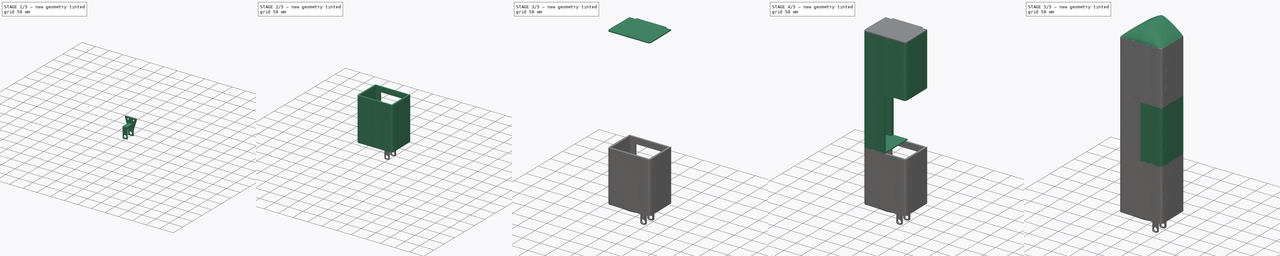
[diagram: build sequence overview — one tinted view per stage of 5, left to right]
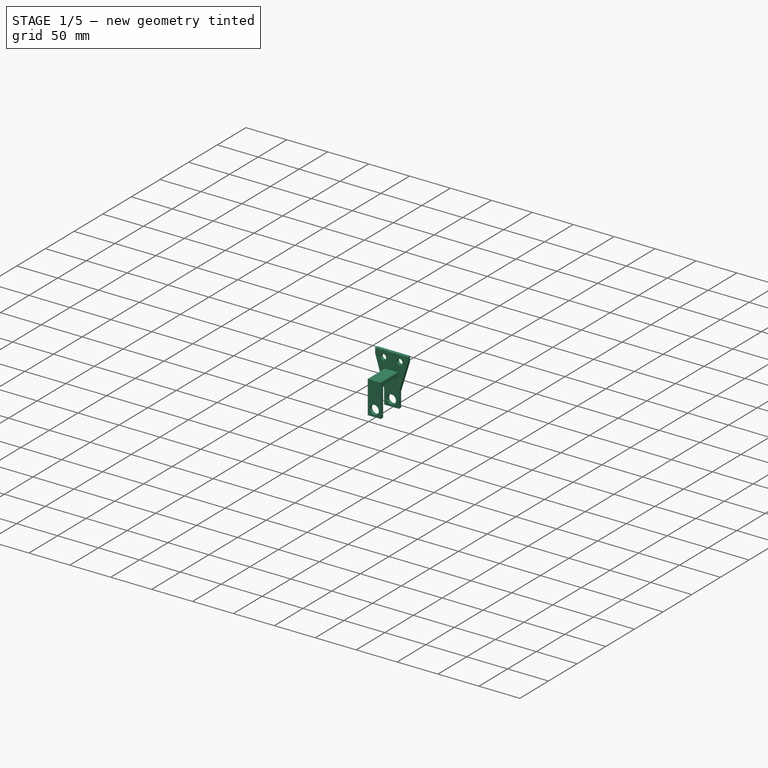
[diagram: stage 1 of 5 — iso view after this stage's code; geometry added in this stage tinted green]
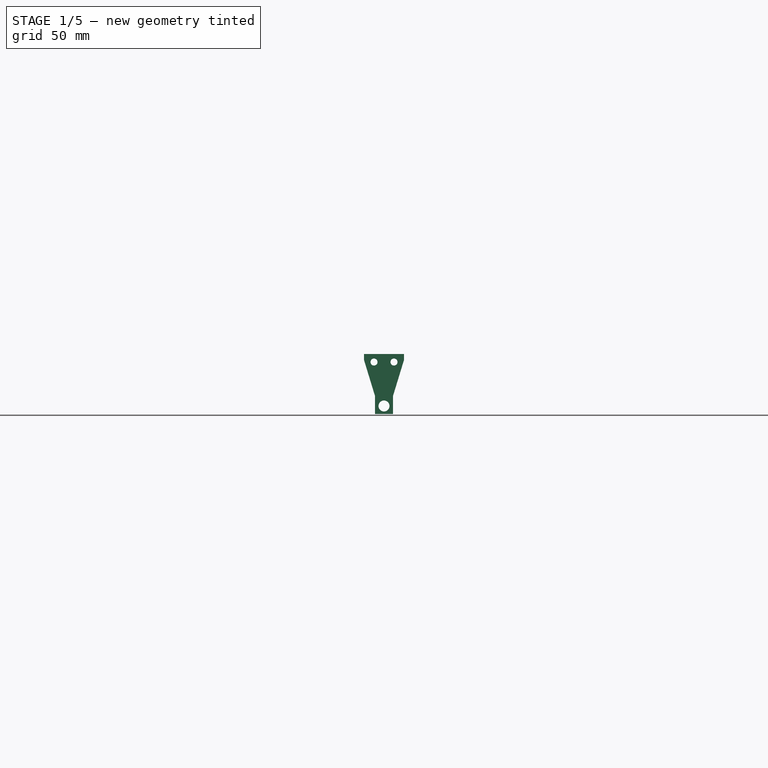
[diagram: stage 1 of 5 — front view after this stage's code; geometry added in this stage tinted green]
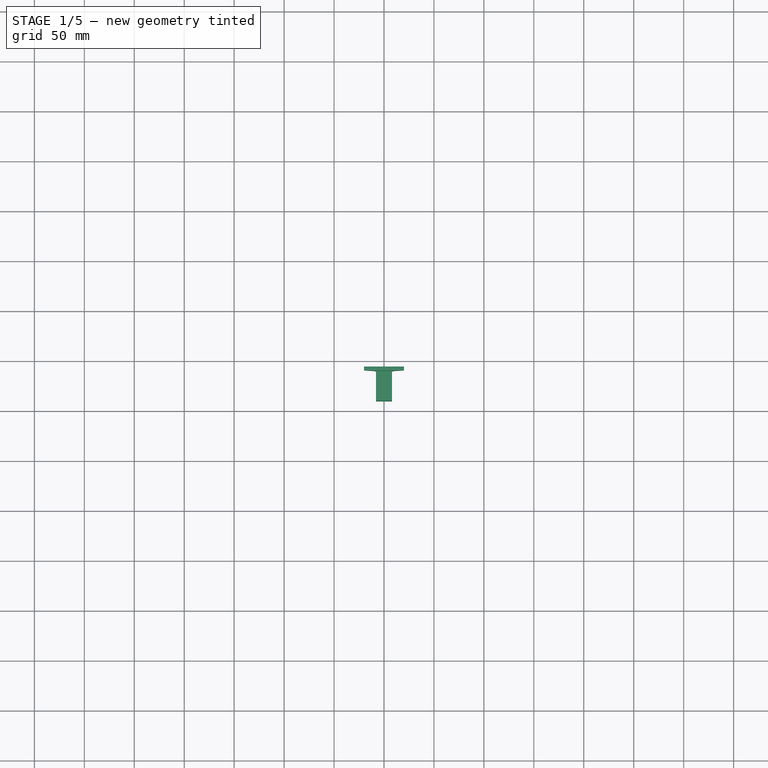
[diagram: stage 1 of 5 — top view after this stage's code; geometry added in this stage tinted green]
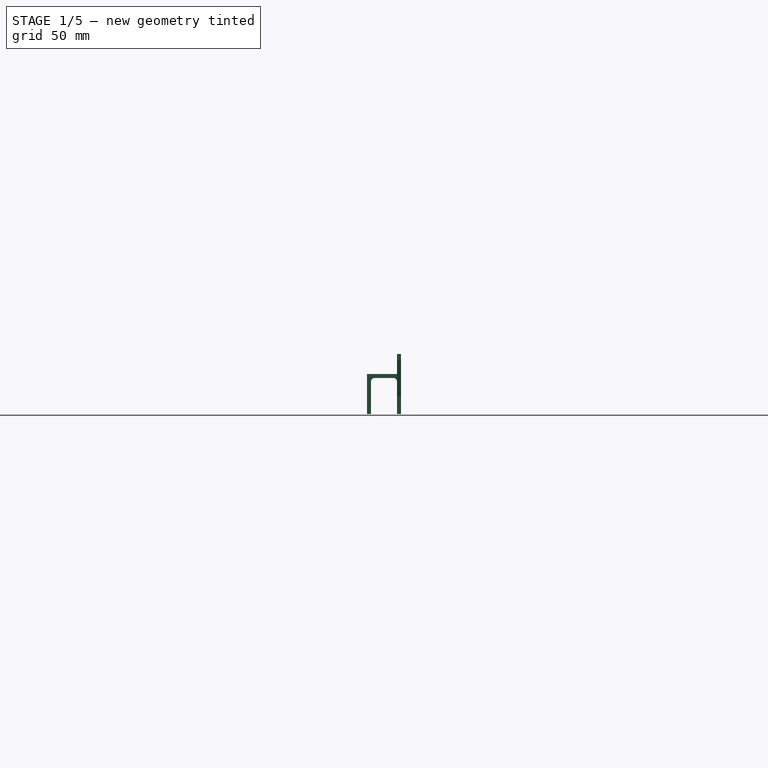
[diagram: stage 1 of 5 — right view after this stage's code; geometry added in this stage tinted green]
FCSTD DOCUMENT  (FreeCAD 0.20R29177 (Git))
Label: model3D
License: All rights reserved
LicenseURL: http://en.wikipedia.org/wiki/All_rights_reserved
objects: Sketcher::SketchObject×24, PartDesign::AdditiveLoft×7, PartDesign::Mirrored×7, PartDesign::Body×7, App::Part×5, PartDesign::Pocket×4, PartDesign::Pad×2, PartDesign::Plane×1, PartDesign::Fillet×1
note: 67 computed .brp shape members not serialized (recipe doc carries the construction recipe); baked Part::Feature solids carry a one-line shape summary decoded from their .brp

FEATURE [PartDesign::Body] Body
  Group = -> [Sketch020,Sketch021,Sketch022,AdditiveLoft,Mirrored005,DatumPlane,Sketch040,Pocket001]
  Origin = -> Origin001
  Tip = -> Pocket001
FEATURE [App::Part] Part
  Group = -> [Body]
  Origin = -> Origin
FEATURE [Sketcher::SketchObject] Sketch041
  FullyConstrained = true
  MapMode = 5
  Placement = pos=(0,90,0) rot=(0,0.707107,0.707107;3.14159rad)
  Support = -> [Pocket]
FEATURE [PartDesign::Body] Body001
  Group = -> [Sketch024,Sketch023,AdditiveLoft001,Mirrored004,Sketch,Pocket,Sketch041]
  Origin = -> Origin003
  Tip = -> Pocket
FEATURE [App::Part] Part001
  Group = -> [Body001]
  Origin = -> Origin002
FEATURE [Sketcher::SketchObject] Sketch042
  FullyConstrained = true
  MapMode = 5
  Placement = pos=(0,0,0) rot=(0.57735,0.57735,0.57735;2.0944rad)
  Support = -> [YZ_Plane011]
  sketch-geometry (12):
    g0: LineSegment StartX=90 StartY=-5 StartZ=0 EndX=90 EndY=-20 EndZ=0
    g1: LineSegment StartX=90 StartY=-20 StartZ=0 EndX=60 EndY=-20 EndZ=0
    g2: LineSegment StartX=60 StartY=-20 StartZ=0 EndX=60 EndY=-60 EndZ=0
    g3: LineSegment StartX=60 StartY=-60 StartZ=0 EndX=64 EndY=-60 EndZ=0
    g4: LineSegment StartX=64 StartY=-60 StartZ=0 EndX=64 EndY=-27.5 EndZ=0
    g5: LineSegment StartX=94 StartY=-55 StartZ=0 EndX=94 EndY=-5 EndZ=0
    g6: LineSegment StartX=94 StartY=-5 StartZ=0 EndX=90 EndY=-5 EndZ=0
    g7: ArcOfCircle CenterX=67.5 CenterY=-27.5 CenterZ=0 NormalX=0 NormalY=0 NormalZ=1 AngleXU=0 Radius=3.5 StartAngle=1.5708 EndAngle=3.14159
    g8: LineSegment StartX=67.5 StartY=-24 StartZ=0 EndX=86.5 EndY=-24 EndZ=0
    g9: LineSegment StartX=90 StartY=-27.5 StartZ=0 EndX=90 EndY=-55 EndZ=0
    g10: LineSegment StartX=90 StartY=-55 StartZ=0 EndX=94 EndY=-55 EndZ=0
    g11: ArcOfCircle CenterX=86.5 CenterY=-27.5 CenterZ=0 NormalX=0 NormalY=0 NormalZ=1 AngleXU=0 Radius=3.5 StartAngle=-9e-16 EndAngle=1.5708
  constraints (34):
    c: Vertical(g0)
    c: Coincident(g0,g1)
    c: Horizontal(g1)
    c: Coincident(g1,g2)
    c: Vertical(g2)
    c: Coincident(g2,g3)
    c: Horizontal(g3)
    c: Coincident(g3,g4)
    c: Vertical(g4)
    c: Vertical(g5)
    c: Coincident(g5,g6)
    c: Coincident(g6,g0)
    c: Horizontal(g6)
    c: DistanceY(g0,g-1) = 5
    c: DistanceY(g0,g0) = 15
    c: DistanceX(g6,g6) = 4
    c: DistanceX(g3,g3) = 4
    c: DistanceX(g-1,g0) = 90
    c: Tangent(g4,g7) = 1.5708
    c: DistanceX(g1,g1) = 30
    c: Diameter(g7) = 7
    c: DistanceY(g2,g2) = 40
    c: Tangent(g7,g8) = 1.5708
    c: Vertical(g9)
    c: Coincident(g9,g10)
    c: Horizontal(g10)
    c: DistanceY(g7,g0) = 4
    c: Coincident(g10,g5)
    c: Tangent(g8,g11) = 1.5708
    c: Tangent(g9,g11) = 1.5708
    c: Diameter(g11) = 7
    c: Horizontal(g8)
    c: DistanceX(g10,g10) = 4
    c: DistanceY(g9,g3) = -5
FEATURE [PartDesign::Pad] Pad
  Direction = (1,-2e-16,3e-16)
  Length = 16
  Length2 = 10
  Midplane = true
  Placement = pos=(0,0,0) rot=(0.57735,0.57735,0.57735;2.0944rad)
  Profile = -> Sketch042
  ReferenceAxis = -> Sketch042 [N_Axis]
  Type = 0
FEATURE [Sketcher::SketchObject] Sketch043
  FullyConstrained = true
  MapMode = 5
  Placement = pos=(4.17e-14,94,-3.13e-14) rot=(0.57735,0.57735,0.57735;4.18879rad)
  Support = -> [Pad]
  sketch-geometry (8):
    g0: LineSegment StartX=0 StartY=20 StartZ=0 EndX=0 EndY=-20 EndZ=0
    g1: LineSegment StartX=0 StartY=-20 StartZ=0 EndX=-6 EndY=-20 EndZ=0
    g2: LineSegment StartX=-42 StartY=-9 StartZ=0 EndX=-60 EndY=-9 EndZ=0
    g3: LineSegment StartX=-60 StartY=-9 StartZ=0 EndX=-60 EndY=9 EndZ=0
    g4: LineSegment StartX=-60 StartY=9 StartZ=0 EndX=-42 EndY=9 EndZ=0
    g5: LineSegment StartX=-6 StartY=20 StartZ=0 EndX=0 EndY=20 EndZ=0
    g6: LineSegment StartX=-42 StartY=9 StartZ=0 EndX=-6 EndY=20 EndZ=0
    g7: LineSegment StartX=-42 StartY=-9 StartZ=0 EndX=-6 EndY=-20 EndZ=0
  constraints (22):
    c: Coincident(g0,g1)
    c: Horizontal(g1)
    c: Horizontal(g2)
    c: Coincident(g2,g3)
    c: Coincident(g3,g4)
    c: Horizontal(g4)
    c: Coincident(g5,g0)
    c: Horizontal(g5)
    c: DistanceX(g0,g-1) = 0
    c: DistanceX(g5,g5) = 6
    c: DistanceX(g1,g1) = 6
    c: DistanceX(g2,g-1) = 60
    c: DistanceY(g3,g3) = 18
    c: Symmetric(g3,g2,g-1)
    c: Symmetric(g0,g0,g-1)
    c: DistanceY(g0,g0) = 40
    c: Coincident(g6,g4)
    c: Coincident(g7,g2)
    c: Coincident(g5,g6)
    c: Coincident(g7,g1)
    c: DistanceX(g2,g4) = 0
    c: DistanceX(g4,g4) = 18
FEATURE [PartDesign::Pad] Pad001
  BaseFeature = -> Pad
  Direction = (4e-16,1,-2e-16)
  Length = 4
  Length2 = 10
  Placement = pos=(0,0,0) rot=(0.57735,0.57735,0.57735;2.0944rad)
  Profile = -> Sketch043
  ReferenceAxis = -> Sketch043 [N_Axis]
  Reversed = true
  Type = 0
FEATURE [Sketcher::SketchObject] Sketch045
  FullyConstrained = true
  MapMode = 5
  Placement = pos=(5.9e-14,94,-7.9e-14) rot=(0.57735,0.57735,0.57735;4.18879rad)
  sketch-geometry (2):
    g0: Circle CenterX=-8 CenterY=10 CenterZ=0 NormalX=0 NormalY=0 NormalZ=1 AngleXU=0 Radius=3.5
    g1: Circle CenterX=-8 CenterY=-10 CenterZ=0 NormalX=0 NormalY=0 NormalZ=1 AngleXU=0 Radius=3.5
  constraints (5):
    c: DistanceY(g1,g0) = 20
    c: DistanceX(g0,g-1) = 8
    c: Diameter(g0) = 7
    c: Diameter(g1) = 7
    c: Symmetric(g0,g1,g-1)
FEATURE [PartDesign::Pocket] Pocket002
  BaseFeature = -> Pad001
  Direction = (-9e-16,-1,9e-16)
  Length = 5
  Length2 = 5
  Placement = pos=(0,0,0) rot=(0.57735,0.57735,0.57735;2.0944rad)
  Profile = -> Sketch045
  ReferenceAxis = -> Sketch045 [N_Axis]
  Type = 0
FEATURE [Sketcher::SketchObject] Sketch044
  FullyConstrained = true
  MapMode = 5
  Placement = pos=(4.17e-14,94,-6.26e-14) rot=(0.57735,0.57735,0.57735;4.18879rad)
  Support = -> [Pad001]
  sketch-geometry (1):
    g0: Circle CenterX=-52 CenterY=0 CenterZ=0 NormalX=0 NormalY=0 NormalZ=1 AngleXU=0 Radius=5.5
  constraints (3):
    c: PointOnObject(g0,g-1)
    c: Diameter(g0) = 11
    c: DistanceX(g0,g-1) = 52
FEATURE [PartDesign::Pocket] Pocket003
  BaseFeature = -> Pocket002
  Direction = (-4e-16,-1,6e-16)
  Length = 5
  Length2 = 5
  Placement = pos=(0,0,0) rot=(0.57735,0.57735,0.57735;2.0944rad)
  Profile = -> Sketch044
  ReferenceAxis = -> Sketch044 [N_Axis]
  Type = 1
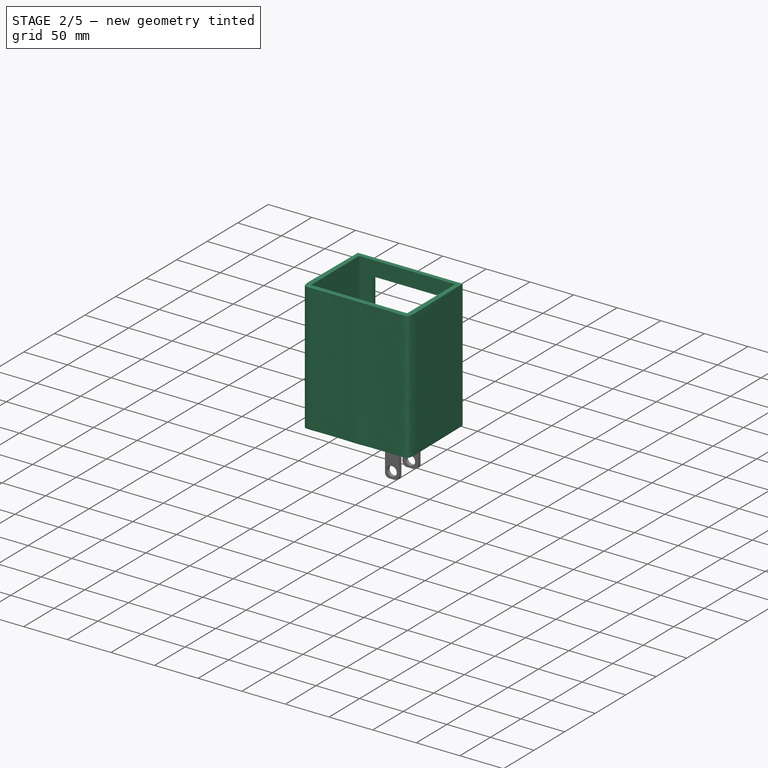
[diagram: stage 2 of 5 — iso view after this stage's code; geometry added in this stage tinted green]
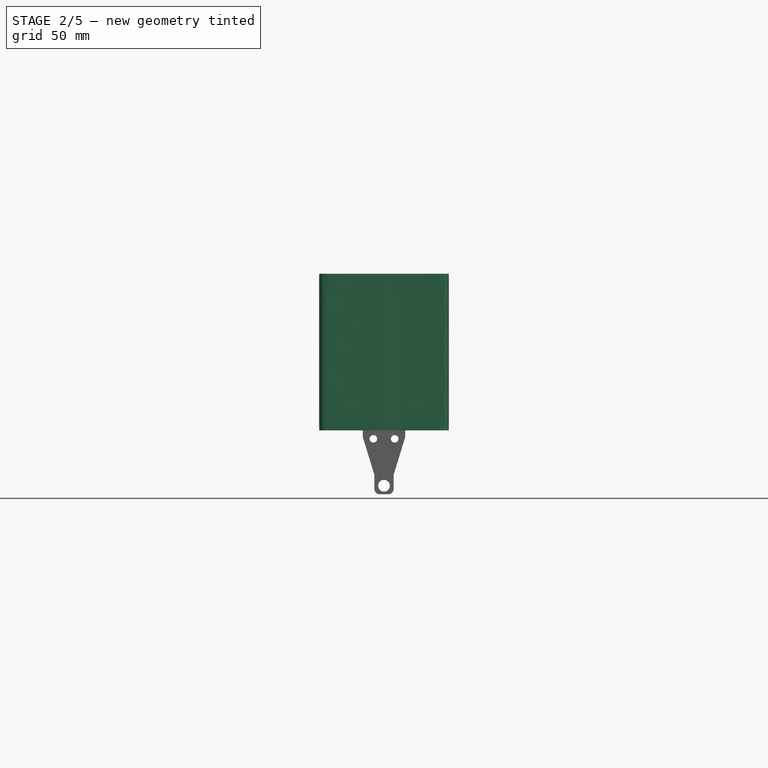
[diagram: stage 2 of 5 — front view after this stage's code; geometry added in this stage tinted green]
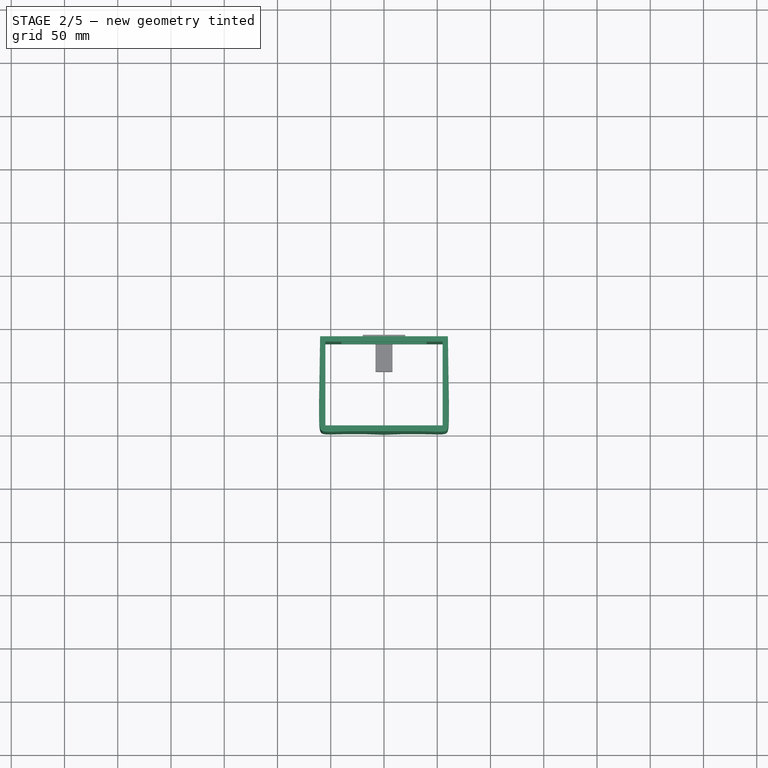
[diagram: stage 2 of 5 — top view after this stage's code; geometry added in this stage tinted green]
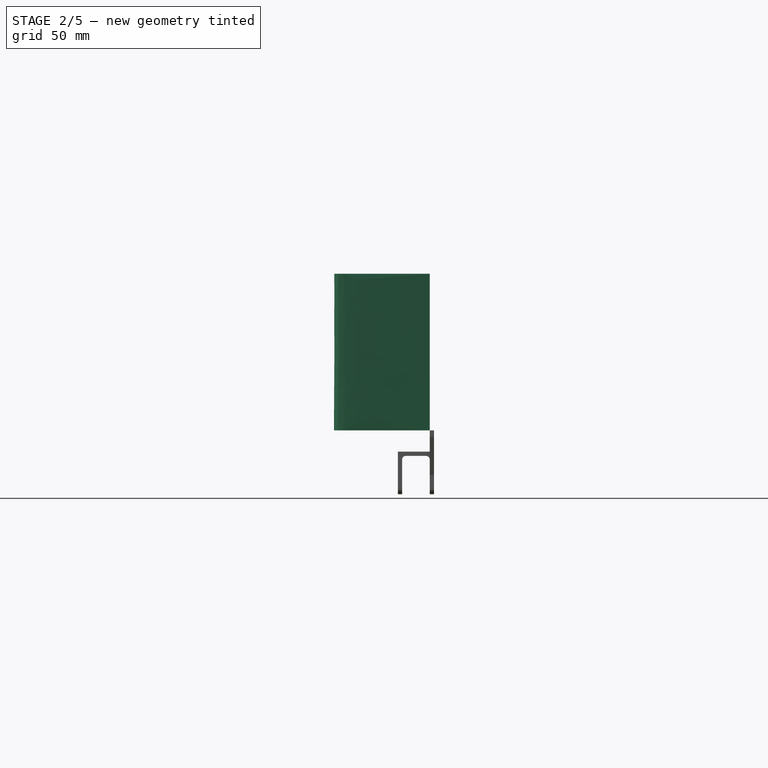
[diagram: stage 2 of 5 — right view after this stage's code; geometry added in this stage tinted green]
FEATURE [PartDesign::AdditiveLoft] AdditiveLoft001
  Closed = false
  Profile = -> Sketch024
  Ruled = false
  Sections = -> [Sketch023]
FEATURE [PartDesign::Body] Body002
  Group = -> [Sketch025,Sketch026,AdditiveLoft002,Sketch027,Sketch028,AdditiveLoft003,Mirrored002,Mirrored003]
  Origin = -> Origin005
  Tip = -> Mirrored003
FEATURE [PartDesign::Mirrored] Mirrored004
  BaseFeature = -> AdditiveLoft001
  MirrorPlane = -> Sketch024 [V_Axis]
  Originals = -> [AdditiveLoft001]
FEATURE [Sketcher::SketchObject] Sketch
  FullyConstrained = true
  MapMode = 5
  Placement = pos=(0,90,0) rot=(0,0.707107,0.707107;3.14159rad)
  Support = -> [Mirrored004]
  sketch-geometry (4):
    g0: LineSegment StartX=-40 StartY=130 StartZ=0 EndX=40 EndY=130 EndZ=0
    g1: LineSegment StartX=40 StartY=130 StartZ=0 EndX=40 EndY=20 EndZ=0
    g2: LineSegment StartX=40 StartY=20 StartZ=0 EndX=-40 EndY=20 EndZ=0
    g3: LineSegment StartX=-40 StartY=20 StartZ=0 EndX=-40 EndY=130 EndZ=0
  constraints (11):
    c: Coincident(g0,g1)
    c: Coincident(g1,g2)
    c: Coincident(g2,g3)
    c: Coincident(g3,g0)
    c: Horizontal(g2)
    c: Vertical(g1)
    c: Vertical(g3)
    c: Symmetric(g0,g0,g-2)
    c: DistanceY(g-1,g1) = 20
    c: DistanceY(g1,g1) = 110
    c: DistanceX(g0,g0) = 80
FEATURE [PartDesign::Pocket] Pocket
  BaseFeature = -> Mirrored004
  Direction = (0,-1,2e-16)
  Length = 5
  Length2 = 5
  Profile = -> Sketch
  ReferenceAxis = -> Sketch [N_Axis]
  Type = 0
FEATURE [PartDesign::Fillet] Fillet
  Base = -> Pocket003 [Edge36,Edge40,Edge71,Edge54]
  BaseFeature = -> Pocket003
  Placement = pos=(0,0,0) rot=(0.57735,0.57735,0.57735;2.0944rad)
  Radius = 5
  SupportTransform = false
  UseAllEdges = false
FEATURE [PartDesign::Body] Body006
  Group = -> [Sketch042,Pad,Sketch043,Pad001,Sketch044,Sketch045,Pocket002,Pocket003,Fillet]
  Origin = -> Origin011
  Tip = -> Fillet
FEATURE [App::Part] Part004
  Group = -> [Body006]
  Origin = -> Origin010
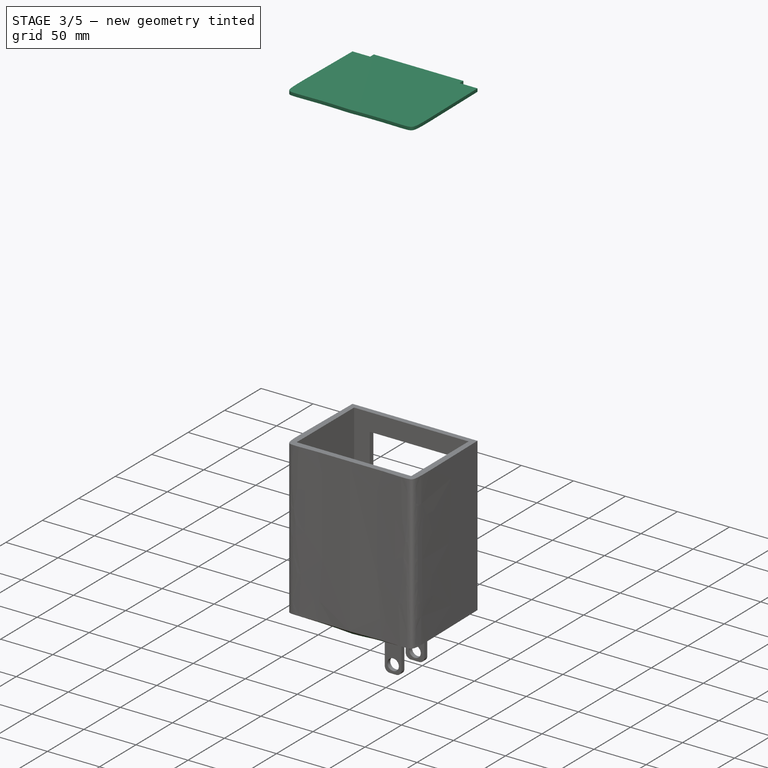
[diagram: stage 3 of 5 — iso view after this stage's code; geometry added in this stage tinted green]
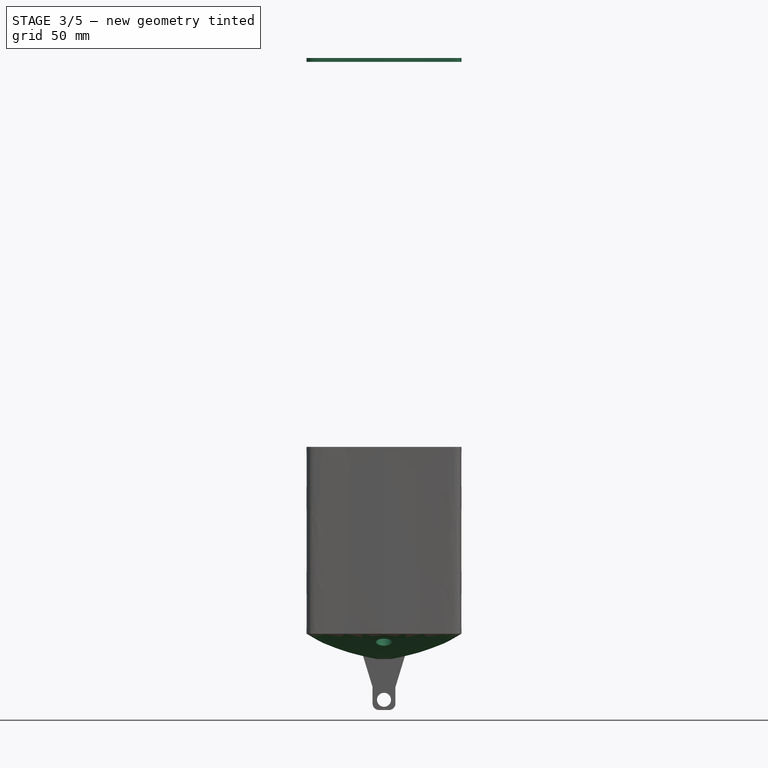
[diagram: stage 3 of 5 — front view after this stage's code; geometry added in this stage tinted green]
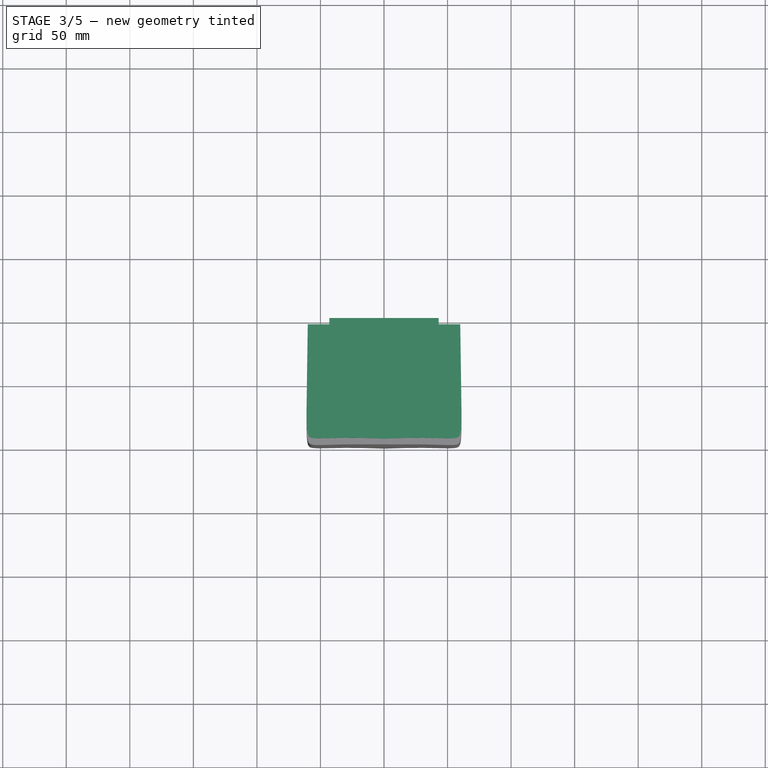
[diagram: stage 3 of 5 — top view after this stage's code; geometry added in this stage tinted green]
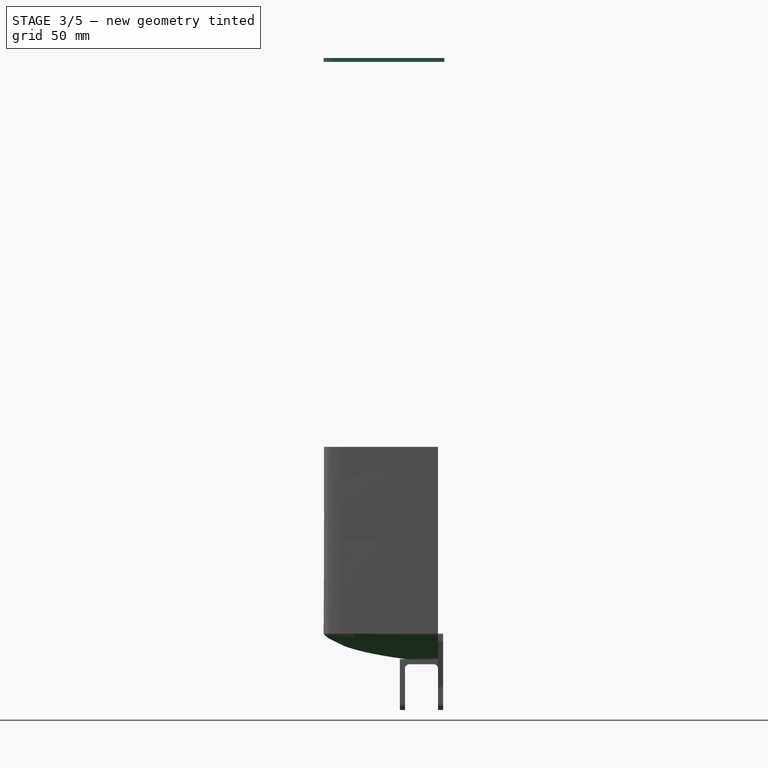
[diagram: stage 3 of 5 — right view after this stage's code; geometry added in this stage tinted green]
FEATURE [Sketcher::SketchObject] Sketch023  label="41001"
  FullyConstrained = false
  Placement = pos=(0,0,147) rot=(0,0,1;0rad)
  sketch-geometry (15):
    g0: LineSegment StartX=0 StartY=90 StartZ=0 EndX=-60 EndY=90 EndZ=0
    g1-g5: Circle x5 (B-spline internal-alignment scaffolding for g6; pole/knot coordinates omitted)
    g6: BSplineCurve PolesCount=5 KnotsCount=3 Degree=3 IsPeriodic=0
    g7: GeomPoint X=-60 Y=90 Z=0
    g8: GeomPoint X=-56.8051 Y=0.710668 Z=0
    g9: GeomPoint X=0 Y=0.816986 Z=0
    g10: LineSegment StartX=0 StartY=90 StartZ=0 EndX=0 EndY=85 EndZ=0
    g11: LineSegment StartX=0 StartY=85 StartZ=0 EndX=-55 EndY=85 EndZ=0
    g12: LineSegment StartX=-55 StartY=85 StartZ=0 EndX=-55 EndY=6.31699 EndZ=0
    g13: LineSegment StartX=-55 StartY=6.31699 StartZ=0 EndX=0 EndY=6.31699 EndZ=0
    g14: LineSegment StartX=0 StartY=6.31699 StartZ=0 EndX=0 EndY=0.816986 EndZ=0
  constraints (27):
    c: PointOnObject(g0,g-2)
    c: Horizontal(g0)
    c: Weight(g1) = 1
    c: Coincident(g6,g0)
    c: Equal(g1, g2-g5) x4
    c: InternalAlignment(g1-g5 -> g6) x5
    c: InternalAlignment(g7,g6)
    c: InternalAlignment(g8,g6)
    c: PointOnObject(g10,g-2)
    c: Vertical(g10)
    c: Coincident(g10,g11)
    c: Horizontal(g11)
    c: Coincident(g11,g12)
    c: Vertical(g12)
    c: Coincident(g12,g13)
    c: PointOnObject(g13,g-2)
    c: Horizontal(g13)
    c: Coincident(g13,g14)
    c: Coincident(g14,g6)
    c: Vertical(g14)
    c: DistanceX(g0,g0) = 60
    c: DistanceY(g10,g10) = 5
    c: DistanceY(g14,g14) = 5.5
    c: Coincident(g6,g9)
    c: DistanceY(g-1,g0) = 90
    c: DistanceX(g0,g11) = 5
    c: DistanceY(g11,g0) = 5
FEATURE [Sketcher::SketchObject] Sketch024  label="41002"
  FullyConstrained = false
  sketch-geometry (15):
    g0: LineSegment StartX=0 StartY=90 StartZ=0 EndX=-60 EndY=90 EndZ=0
    g1-g5: Circle x5 (B-spline internal-alignment scaffolding for g6; pole/knot coordinates omitted)
    g6: BSplineCurve PolesCount=5 KnotsCount=3 Degree=3 IsPeriodic=0
    g7: GeomPoint X=-60 Y=90 Z=0
    g8: GeomPoint X=-56.8051 Y=0.710668 Z=0
    g9: GeomPoint X=0 Y=0 Z=0
    g10: LineSegment StartX=0 StartY=90 StartZ=0 EndX=0 EndY=85 EndZ=0
    g11: LineSegment StartX=0 StartY=85 StartZ=0 EndX=-55 EndY=85 EndZ=0
    g12: LineSegment StartX=-55 StartY=85 StartZ=0 EndX=-55 EndY=5.5 EndZ=0
    g13: LineSegment StartX=-55 StartY=5.5 StartZ=0 EndX=0 EndY=5.5 EndZ=0
    g14: LineSegment StartX=0 StartY=5.5 StartZ=0 EndX=0 EndY=0 EndZ=0
  constraints (26):
    c: PointOnObject(g0,g-2)
    c: Horizontal(g0)
    c: Weight(g1) = 1
    c: Coincident(g6,g0)
    c: Equal(g1, g2-g5) x4
    c: InternalAlignment(g1-g5 -> g6) x5
    c: InternalAlignment(g7,g6)
    c: InternalAlignment(g8,g6)
    c: PointOnObject(g10,g-2)
    c: Vertical(g10)
    c: Coincident(g10,g11)
    c: Horizontal(g11)
    c: Coincident(g11,g12)
    c: Vertical(g12)
    c: Coincident(g12,g13)
    c: PointOnObject(g13,g-2)
    c: Horizontal(g13)
    c: Coincident(g13,g14)
    c: Coincident(g14,g6)
    c: Vertical(g14)
    c: DistanceX(g0,g11) = 5
    c: DistanceX(g0,g6) = 60
    c: DistanceY(g14,g14) = 5.5
    c: DistanceY(g11,g0) = 5
    c: DistanceY(g6,g0) = 90
    c: PointOnObject(g6,g-1)
FEATURE [Sketcher::SketchObject] Sketch022  label="32001"
  FullyConstrained = false
  Placement = pos=(0,0,-7) rot=(0,0,1;0rad)
  sketch-geometry (11):
    g0: LineSegment StartX=0 StartY=9.66838 StartZ=0 EndX=0 EndY=90 EndZ=0
    g1: LineSegment StartX=0 StartY=90 StartZ=0 EndX=-47.9799 EndY=90 EndZ=0
    g2-g6: Circle x5 (B-spline internal-alignment scaffolding for g7; pole/knot coordinates omitted)
    g7: BSplineCurve PolesCount=5 KnotsCount=3 Degree=3 IsPeriodic=0
    g8: GeomPoint X=-47.9799 Y=90 Z=0
    g9: GeomPoint X=-43.1698 Y=21.4343 Z=0
    g10: GeomPoint X=0 Y=9.66838 Z=0
  constraints (13):
    c: PointOnObject(g0,g-2)
    c: Horizontal(g1)
    c: Weight(g2) = 1
    c: Coincident(g7,g1)
    c: Equal(g2, g3-g6) x4
    c: Coincident(g7,g0)
    c: InternalAlignment(g2-g6 -> g7) x5
    c: InternalAlignment(g8,g7)
    c: InternalAlignment(g9,g7)
    c: InternalAlignment(g10,g7)
    c: Coincident(g1,g0)
    c: DistanceY(g-1,g0) = 90
    c: Vertical(g0)
FEATURE [Sketcher::SketchObject] Sketch021  label="31001"
  FullyConstrained = false
  sketch-geometry (11):
    g0: LineSegment StartX=0 StartY=0 StartZ=0 EndX=0 EndY=90 EndZ=0
    g1: LineSegment StartX=0 StartY=90 StartZ=0 EndX=-60 EndY=90 EndZ=0
    g2-g6: Circle x5 (B-spline internal-alignment scaffolding for g7; pole/knot coordinates omitted)
    g7: BSplineCurve PolesCount=5 KnotsCount=3 Degree=3 IsPeriodic=0
    g8: GeomPoint X=-60 Y=90 Z=0
    g9: GeomPoint X=-56.8051 Y=0.710668 Z=0
    g10: GeomPoint X=0 Y=0 Z=0
  constraints (14):
    c: Coincident(g-1,g0)
    c: PointOnObject(g0,g-2)
    c: Horizontal(g1)
    c: Weight(g2) = 1
    c: Coincident(g7,g1)
    c: Equal(g2, g3-g6) x4
    c: Coincident(g7,g0)
    c: InternalAlignment(g2-g6 -> g7) x5
    c: InternalAlignment(g8,g7)
    c: InternalAlignment(g9,g7)
    c: InternalAlignment(g10,g7)
    c: DistanceY(g0,g1) = 90
    c: DistanceX(g1,g0) = 60
    c: Coincident(g1,g0)
FEATURE [Sketcher::SketchObject] Sketch020  label="33001"
  FullyConstrained = false
  Placement = pos=(0,0,-20) rot=(0,0,1;0rad)
  sketch-geometry (11):
    g0: LineSegment StartX=0 StartY=64.8718 StartZ=0 EndX=0 EndY=90 EndZ=0
    g1: LineSegment StartX=0 StartY=90 StartZ=0 EndX=-5.346 EndY=90 EndZ=0
    g2-g6: Circle x5 (B-spline internal-alignment scaffolding for g7; pole/knot coordinates omitted)
    g7: BSplineCurve PolesCount=5 KnotsCount=3 Degree=3 IsPeriodic=0
    g8: GeomPoint X=-5.346 Y=90 Z=0
    g9: GeomPoint X=-4.55494 Y=70.668 Z=0
    g10: GeomPoint X=0 Y=64.8718 Z=0
  constraints (13):
    c: PointOnObject(g0,g-2)
    c: Horizontal(g1)
    c: Weight(g2) = 1
    c: Coincident(g7,g1)
    c: Equal(g2, g3-g6) x4
    c: Coincident(g7,g0)
    c: InternalAlignment(g2-g6 -> g7) x5
    c: InternalAlignment(g8,g7)
    c: InternalAlignment(g9,g7)
    c: InternalAlignment(g10,g7)
    c: Coincident(g1,g0)
    c: DistanceY(g-1,g0) = 90
    c: Vertical(g0)
FEATURE [PartDesign::AdditiveLoft] AdditiveLoft
  Closed = false
  Profile = -> Sketch021
  Ruled = false
  Sections = -> [Sketch022,Sketch020]
FEATURE [PartDesign::Mirrored] Mirrored005
  BaseFeature = -> AdditiveLoft
  MirrorPlane = -> Sketch021 [V_Axis]
  Originals = -> [AdditiveLoft]
FEATURE [PartDesign::Body] Body004
  Group = -> [Sketch035,Sketch036,AdditiveLoft006,Mirrored006]
  Origin = -> Origin008
  Tip = -> Mirrored006
FEATURE [App::Part] Part002
  Group = -> [Body002,Body004]
  Origin = -> Origin004
FEATURE [Sketcher::SketchObject] Sketch037  label="110001001001"
  FullyConstrained = false
  Placement = pos=(0,0,450) rot=(0,0,1;0rad)
  sketch-geometry (13):
    g0: LineSegment StartX=0 StartY=0 StartZ=0 EndX=0 EndY=95 EndZ=0
    g1: LineSegment StartX=0 StartY=95 StartZ=0 EndX=-43 EndY=95 EndZ=0
    g2: LineSegment StartX=-43 StartY=95 StartZ=0 EndX=-43 EndY=90 EndZ=0
    g3: LineSegment StartX=-43 StartY=90 StartZ=0 EndX=-60 EndY=90 EndZ=0
    g4-g8: Circle x5 (B-spline internal-alignment scaffolding for g9; pole/knot coordinates omitted)
    g9: BSplineCurve PolesCount=5 KnotsCount=3 Degree=3 IsPeriodic=0
    g10: GeomPoint X=-60 Y=90 Z=0
    g11: GeomPoint X=-56.8051 Y=0.710668 Z=0
    g12: GeomPoint X=0 Y=0 Z=0
  constraints (19):
    c: Coincident(g-1,g0)
    c: PointOnObject(g0,g-2)
    c: Coincident(g1,g2)
    c: Vertical(g2)
    c: Coincident(g2,g3)
    c: Horizontal(g3)
    c: Weight(g4) = 1
    c: Coincident(g9,g3)
    c: Equal(g4, g5-g8) x4
    c: Coincident(g9,g0)
    c: InternalAlignment(g4-g8 -> g9) x5
    c: InternalAlignment(g10,g9)
    c: InternalAlignment(g11,g9)
    c: InternalAlignment(g12,g9)
    c: Horizontal(g1)
    c: DistanceY(g2,g2) = 5
    c: DistanceY(g0,g2) = 90
    c: DistanceX(g3,g0) = 60
    c: Coincident(g1,g0)
FEATURE [Sketcher::SketchObject] Sketch038  label="110002001001"
  FullyConstrained = false
  Placement = pos=(0,0,453) rot=(0,0,1;0rad)
  sketch-geometry (13):
    g0: LineSegment StartX=0 StartY=0 StartZ=0 EndX=0 EndY=95 EndZ=0
    g1: LineSegment StartX=0 StartY=95 StartZ=0 EndX=-43 EndY=95 EndZ=0
    g2: LineSegment StartX=-43 StartY=95 StartZ=0 EndX=-43 EndY=90 EndZ=0
    g3: LineSegment StartX=-43 StartY=90 StartZ=0 EndX=-60 EndY=90 EndZ=0
    g4-g8: Circle x5 (B-spline internal-alignment scaffolding for g9; pole/knot coordinates omitted)
    g9: BSplineCurve PolesCount=5 KnotsCount=3 Degree=3 IsPeriodic=0
    g10: GeomPoint X=-60 Y=90 Z=0
    g11: GeomPoint X=-56.8051 Y=0.710668 Z=0
    g12: GeomPoint X=0 Y=0 Z=0
  constraints (19):
    c: Coincident(g-1,g0)
    c: PointOnObject(g0,g-2)
    c: Coincident(g1,g2)
    c: Vertical(g2)
    c: Coincident(g2,g3)
    c: Horizontal(g3)
    c: Weight(g4) = 1
    c: Coincident(g9,g3)
    c: Equal(g4, g5-g8) x4
    c: Coincident(g9,g0)
    c: InternalAlignment(g4-g8 -> g9) x5
    c: InternalAlignment(g10,g9)
    c: InternalAlignment(g11,g9)
    c: InternalAlignment(g12,g9)
    c: Horizontal(g1)
    c: DistanceY(g2,g2) = 5
    c: DistanceY(g0,g2) = 90
    c: DistanceX(g3,g0) = 60
    c: Coincident(g1,g0)
FEATURE [PartDesign::AdditiveLoft] AdditiveLoft007
  Closed = false
  Placement = pos=(0,0,453) rot=(0,0,1;0rad)
  Profile = -> Sketch038
  Ruled = false
  Sections = -> [Sketch037]
FEATURE [PartDesign::Mirrored] Mirrored007
  BaseFeature = -> AdditiveLoft007
  MirrorPlane = -> Sketch038 [V_Axis]
  Originals = -> [AdditiveLoft007]
  Placement = pos=(0,0,453) rot=(0,0,1;0rad)
FEATURE [PartDesign::Body] Body005
  Group = -> [Sketch037,Sketch038,AdditiveLoft007,Mirrored007]
  Origin = -> Origin009
  Tip = -> Mirrored007
FEATURE [App::Part] Part003
  Group = -> [Body003,Body005]
  Origin = -> Origin006
FEATURE [PartDesign::Plane] DatumPlane
  AttachmentOffset = pos=(0,0,0) rot=(-1,0,0;0.349066rad)
  Length = 146.529
  MapMode = 5
  Placement = pos=(0,0,0) rot=(-1,0,0;0.349066rad)
  ResizeMode = 0
  Support = -> [Mirrored005]
  Width = 149.863
FEATURE [Sketcher::SketchObject] Sketch040
  FullyConstrained = false
  MapMode = 5
  Placement = pos=(0,0,0) rot=(-1,0,0;0.349066rad)
  Support = -> [DatumPlane]
  sketch-geometry (1):
    g0: Circle CenterX=0 CenterY=11.6027 CenterZ=0 NormalX=0 NormalY=0 NormalZ=1 AngleXU=0 Radius=6.25
  constraints (2):
    c: PointOnObject(g0,g-2)
    c: Diameter(g0) = 12.5
FEATURE [PartDesign::Pocket] Pocket001
  BaseFeature = -> Mirrored005
  Direction = (0,-0.34202,-0.939693)
  Length = 17
  Length2 = 5
  Midplane = true
  Profile = -> Sketch040
  ReferenceAxis = -> Sketch040 [N_Axis]
  Type = 0
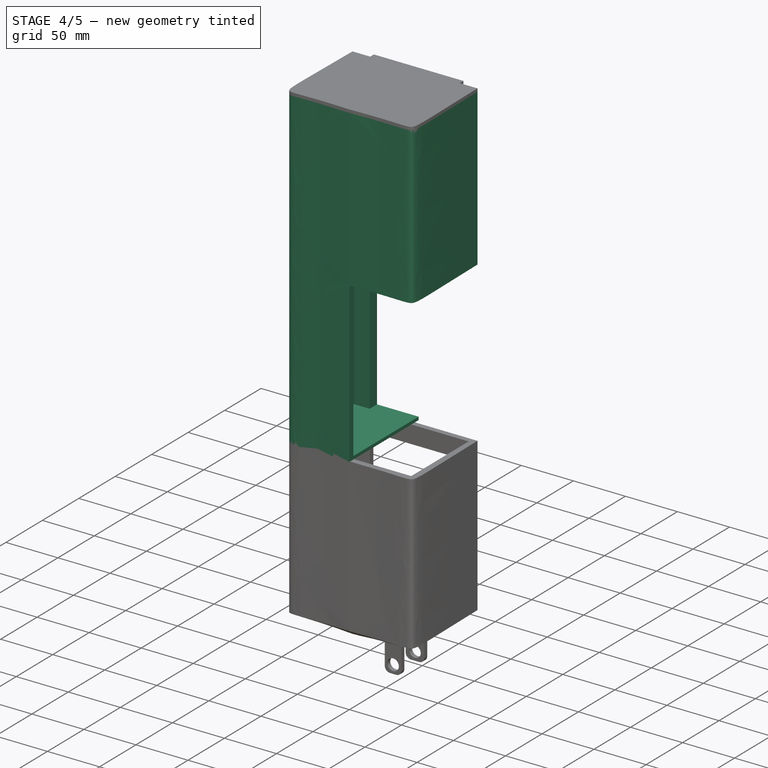
[diagram: stage 4 of 5 — iso view after this stage's code; geometry added in this stage tinted green]
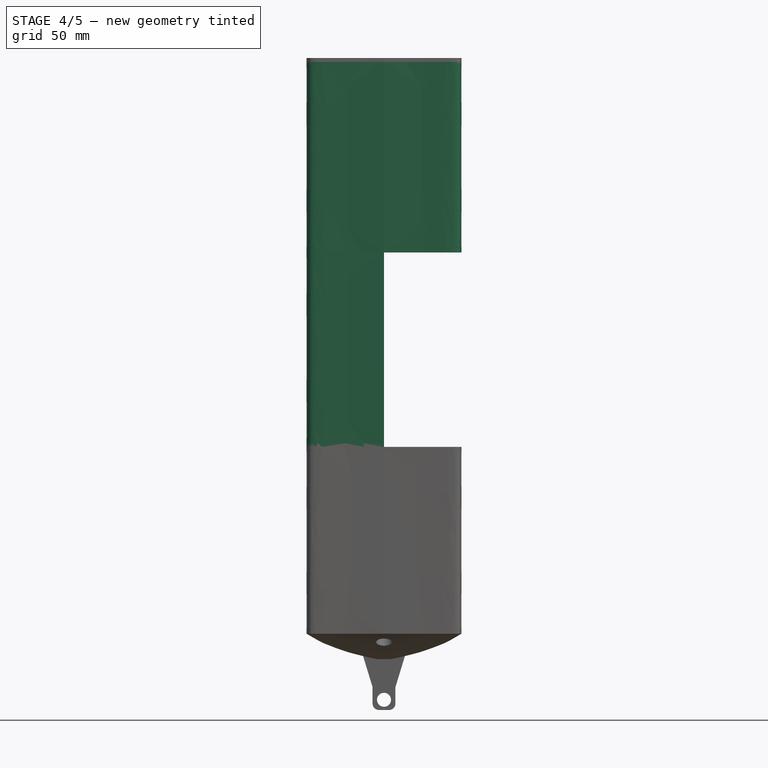
[diagram: stage 4 of 5 — front view after this stage's code; geometry added in this stage tinted green]
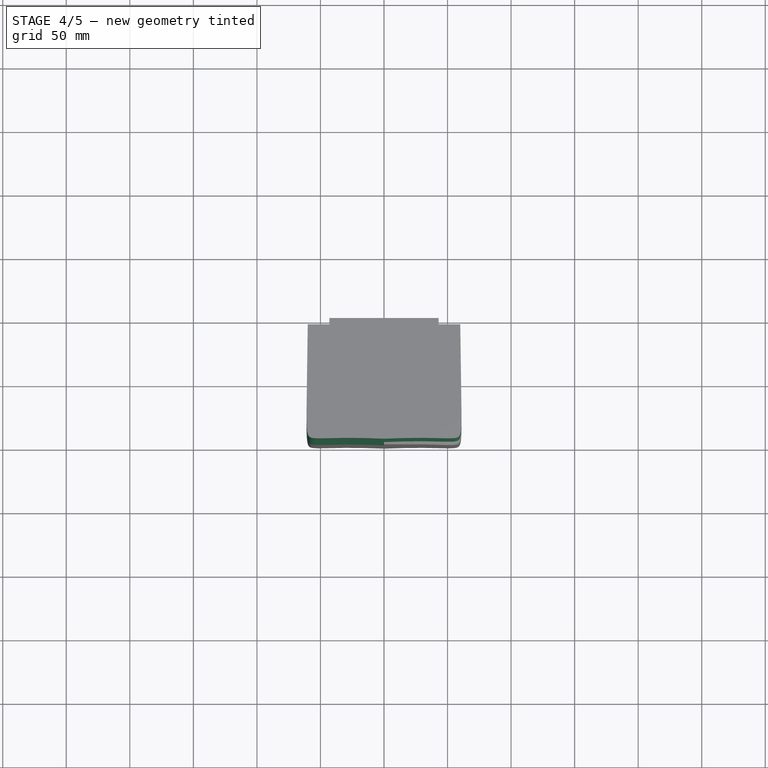
[diagram: stage 4 of 5 — top view after this stage's code; geometry added in this stage tinted green]
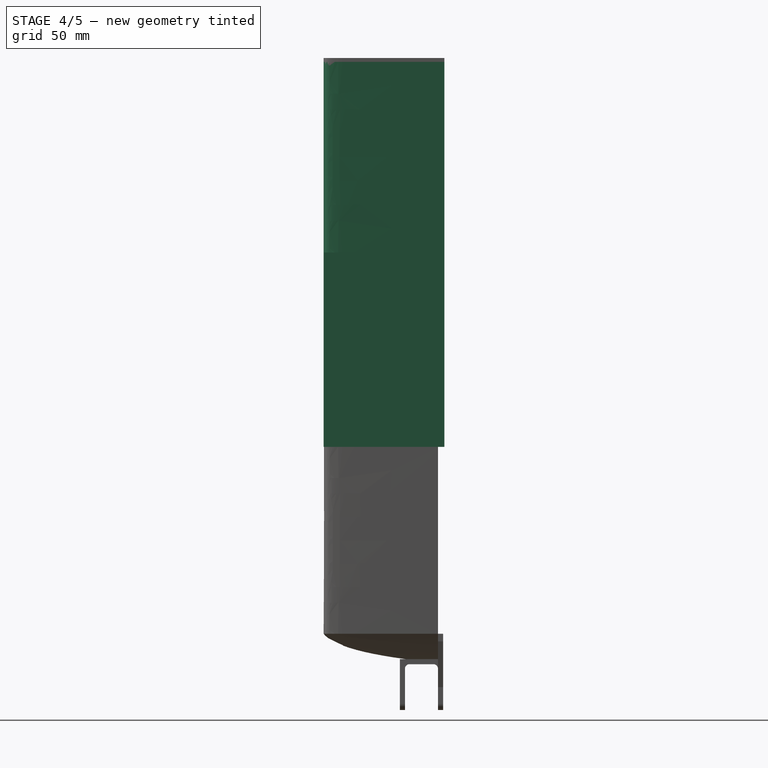
[diagram: stage 4 of 5 — right view after this stage's code; geometry added in this stage tinted green]
FEATURE [Sketcher::SketchObject] Sketch025  label="110003"
  FullyConstrained = false
  Placement = pos=(0,0,150) rot=(0,0,1;0rad)
  sketch-geometry (13):
    g0: LineSegment StartX=0 StartY=0 StartZ=0 EndX=0 EndY=95 EndZ=0
    g1: LineSegment StartX=0 StartY=95 StartZ=0 EndX=-43 EndY=95 EndZ=0
    g2: LineSegment StartX=-43 StartY=95 StartZ=0 EndX=-43 EndY=90 EndZ=0
    g3: LineSegment StartX=-43 StartY=90 StartZ=0 EndX=-60 EndY=90 EndZ=0
    g4-g8: Circle x5 (B-spline internal-alignment scaffolding for g9; pole/knot coordinates omitted)
    g9: BSplineCurve PolesCount=5 KnotsCount=3 Degree=3 IsPeriodic=0
    g10: GeomPoint X=-60 Y=90 Z=0
    g11: GeomPoint X=-56.8051 Y=0.710668 Z=0
    g12: GeomPoint X=0 Y=0 Z=0
  constraints (19):
    c: Coincident(g-1,g0)
    c: PointOnObject(g0,g-2)
    c: Coincident(g1,g2)
    c: Vertical(g2)
    c: Coincident(g2,g3)
    c: Horizontal(g3)
    c: Weight(g4) = 1
    c: Coincident(g9,g3)
    c: Equal(g4, g5-g8) x4
    c: Coincident(g9,g0)
    c: InternalAlignment(g4-g8 -> g9) x5
    c: InternalAlignment(g10,g9)
    c: InternalAlignment(g11,g9)
    c: InternalAlignment(g12,g9)
    c: Horizontal(g1)
    c: DistanceY(g2,g2) = 5
    c: DistanceY(g0,g2) = 90
    c: DistanceX(g3,g0) = 60
    c: Coincident(g1,g0)
FEATURE [Sketcher::SketchObject] Sketch026  label="110004"
  FullyConstrained = false
  Placement = pos=(0,0,147) rot=(0,0,1;0rad)
  sketch-geometry (13):
    g0: LineSegment StartX=0 StartY=0 StartZ=0 EndX=0 EndY=95 EndZ=0
    g1: LineSegment StartX=0 StartY=95 StartZ=0 EndX=-43 EndY=95 EndZ=0
    g2: LineSegment StartX=-43 StartY=95 StartZ=0 EndX=-43 EndY=90 EndZ=0
    g3: LineSegment StartX=-43 StartY=90 StartZ=0 EndX=-60 EndY=90 EndZ=0
    g4-g8: Circle x5 (B-spline internal-alignment scaffolding for g9; pole/knot coordinates omitted)
    g9: BSplineCurve PolesCount=5 KnotsCount=3 Degree=3 IsPeriodic=0
    g10: GeomPoint X=-60 Y=90 Z=0
    g11: GeomPoint X=-56.8051 Y=0.710668 Z=0
    g12: GeomPoint X=0 Y=0 Z=0
  constraints (19):
    c: Coincident(g-1,g0)
    c: PointOnObject(g0,g-2)
    c: Coincident(g1,g2)
    c: Vertical(g2)
    c: Coincident(g2,g3)
    c: Horizontal(g3)
    c: Weight(g4) = 1
    c: Coincident(g9,g3)
    c: Equal(g4, g5-g8) x4
    c: Coincident(g9,g0)
    c: InternalAlignment(g4-g8 -> g9) x5
    c: InternalAlignment(g10,g9)
    c: InternalAlignment(g11,g9)
    c: InternalAlignment(g12,g9)
    c: Horizontal(g1)
    c: DistanceY(g2,g2) = 5
    c: DistanceY(g0,g2) = 90
    c: DistanceX(g3,g0) = 60
    c: Coincident(g1,g0)
FEATURE [PartDesign::AdditiveLoft] AdditiveLoft002
  Closed = false
  Placement = pos=(0,0,150) rot=(0,0,1;0rad)
  Profile = -> Sketch025
  Ruled = false
  Sections = -> [Sketch026]
FEATURE [Sketcher::SketchObject] Sketch027  label="0002"
  FullyConstrained = false
  Placement = pos=(0,0,150) rot=(0,0,1;0rad)
  sketch-geometry (17):
    g0: LineSegment StartX=0 StartY=0 StartZ=0 EndX=0 EndY=5.5 EndZ=0
    g1: LineSegment StartX=0 StartY=5.5 StartZ=0 EndX=-55 EndY=5.5 EndZ=0
    g2: LineSegment StartX=-55 StartY=5.5 StartZ=0 EndX=-55 EndY=85 EndZ=0
    g3: LineSegment StartX=-55 StartY=85 StartZ=0 EndX=-40 EndY=85 EndZ=0
    g4: LineSegment StartX=-40 StartY=85 StartZ=0 EndX=-40 EndY=95 EndZ=0
    g5: LineSegment StartX=-40 StartY=95 StartZ=0 EndX=-43 EndY=95 EndZ=0
    g6: LineSegment StartX=-43 StartY=95 StartZ=0 EndX=-43 EndY=90 EndZ=0
    g7: LineSegment StartX=-43 StartY=90 StartZ=0 EndX=-60 EndY=90 EndZ=0
    g8-g12: Circle x5 (B-spline internal-alignment scaffolding for g13; pole/knot coordinates omitted)
    g13: BSplineCurve PolesCount=5 KnotsCount=3 Degree=3 IsPeriodic=0
    g14: GeomPoint X=-60 Y=90 Z=0
    g15: GeomPoint X=-56.8051 Y=0.710668 Z=0
    g16: GeomPoint X=0 Y=0 Z=0
  constraints (32):
    c: Coincident(g-1,g0)
    c: PointOnObject(g0,g-2)
    c: Coincident(g0,g1)
    c: Horizontal(g1)
    c: Coincident(g1,g2)
    c: Vertical(g2)
    c: Coincident(g2,g3)
    c: Horizontal(g3)
    c: Coincident(g3,g4)
    c: Vertical(g4)
    c: Coincident(g4,g5)
    c: Coincident(g5,g6)
    c: Vertical(g6)
    c: Coincident(g6,g7)
    c: Horizontal(g7)
    c: Weight(g8) = 1
    c: Coincident(g13,g7)
    c: Equal(g8, g9-g12) x4
    c: Coincident(g13,g0)
    c: InternalAlignment(g8-g12 -> g13) x5
    c: InternalAlignment(g14,g13)
    c: InternalAlignment(g15,g13)
    c: InternalAlignment(g16,g13)
    c: Horizontal(g5)
    c: DistanceX(g5,g5) = 3
    c: DistanceY(g6,g6) = 5
    c: DistanceY(g3,g6) = 5
    c: DistanceY(g0,g6) = 90
    c: DistanceX(g7,g2) = 5
    c: DistanceY(g0,g0) = 5.5
    c: DistanceX(g7,g0) = 60
    c: DistanceX(g3,g0) = 40
FEATURE [Sketcher::SketchObject] Sketch028  label="01001"
  FullyConstrained = false
  Placement = pos=(0,0,300) rot=(0,0,1;0rad)
  sketch-geometry (17):
    g0: LineSegment StartX=0 StartY=0 StartZ=0 EndX=0 EndY=5.5 EndZ=0
    g1: LineSegment StartX=0 StartY=5.5 StartZ=0 EndX=-55 EndY=5.5 EndZ=0
    g2: LineSegment StartX=-55 StartY=5.5 StartZ=0 EndX=-55 EndY=85 EndZ=0
    g3: LineSegment StartX=-55 StartY=85 StartZ=0 EndX=-40 EndY=85 EndZ=0
    g4: LineSegment StartX=-40 StartY=85 StartZ=0 EndX=-40 EndY=95 EndZ=0
    g5: LineSegment StartX=-40 StartY=95 StartZ=0 EndX=-43 EndY=95 EndZ=0
    g6: LineSegment StartX=-43 StartY=95 StartZ=0 EndX=-43 EndY=90 EndZ=0
    g7: LineSegment StartX=-43 StartY=90 StartZ=0 EndX=-60 EndY=90 EndZ=0
    g8-g12: Circle x5 (B-spline internal-alignment scaffolding for g13; pole/knot coordinates omitted)
    g13: BSplineCurve PolesCount=5 KnotsCount=3 Degree=3 IsPeriodic=0
    g14: GeomPoint X=-60 Y=90 Z=0
    g15: GeomPoint X=-56.8051 Y=0.710668 Z=0
    g16: GeomPoint X=0 Y=0 Z=0
  constraints (32):
    c: Coincident(g-1,g0)
    c: PointOnObject(g0,g-2)
    c: Coincident(g0,g1)
    c: Horizontal(g1)
    c: Coincident(g1,g2)
    c: Vertical(g2)
    c: Coincident(g2,g3)
    c: Horizontal(g3)
    c: Coincident(g3,g4)
    c: Vertical(g4)
    c: Coincident(g4,g5)
    c: Coincident(g5,g6)
    c: Vertical(g6)
    c: Coincident(g6,g7)
    c: Horizontal(g7)
    c: Weight(g8) = 1
    c: Coincident(g13,g7)
    c: Equal(g8, g9-g12) x4
    c: Coincident(g13,g0)
    c: InternalAlignment(g8-g12 -> g13) x5
    c: InternalAlignment(g14,g13)
    c: InternalAlignment(g15,g13)
    c: InternalAlignment(g16,g13)
    c: Horizontal(g5)
    c: DistanceX(g5,g5) = 3
    c: DistanceY(g6,g6) = 5
    c: DistanceY(g3,g6) = 5
    c: DistanceY(g0,g6) = 90
    c: DistanceX(g7,g2) = 5
    c: DistanceY(g0,g0) = 5.5
    c: DistanceX(g7,g0) = 60
    c: DistanceX(g3,g0) = 40
FEATURE [PartDesign::AdditiveLoft] AdditiveLoft003
  BaseFeature = -> AdditiveLoft002
  Closed = false
  Placement = pos=(0,0,150) rot=(0,0,1;0rad)
  Profile = -> Sketch027
  Ruled = false
  Sections = -> [Sketch028]
FEATURE [Sketcher::SketchObject] Sketch035  label="0002001"
  FullyConstrained = false
  Placement = pos=(0,0,450) rot=(0,0,1;0rad)
  sketch-geometry (17):
    g0: LineSegment StartX=0 StartY=0 StartZ=0 EndX=0 EndY=5.5 EndZ=0
    g1: LineSegment StartX=0 StartY=5.5 StartZ=0 EndX=-55 EndY=5.5 EndZ=0
    g2: LineSegment StartX=-55 StartY=5.5 StartZ=0 EndX=-55 EndY=85 EndZ=0
    g3: LineSegment StartX=-55 StartY=85 StartZ=0 EndX=-40 EndY=85 EndZ=0
    g4: LineSegment StartX=-40 StartY=85 StartZ=0 EndX=-40 EndY=95 EndZ=0
    g5: LineSegment StartX=-40 StartY=95 StartZ=0 EndX=-43 EndY=95 EndZ=0
    g6: LineSegment StartX=-43 StartY=95 StartZ=0 EndX=-43 EndY=90 EndZ=0
    g7: LineSegment StartX=-43 StartY=90 StartZ=0 EndX=-60 EndY=90 EndZ=0
    g8-g12: Circle x5 (B-spline internal-alignment scaffolding for g13; pole/knot coordinates omitted)
    g13: BSplineCurve PolesCount=5 KnotsCount=3 Degree=3 IsPeriodic=0
    g14: GeomPoint X=-60 Y=90 Z=0
    g15: GeomPoint X=-56.8051 Y=0.710668 Z=0
    g16: GeomPoint X=0 Y=0 Z=0
  constraints (32):
    c: Coincident(g-1,g0)
    c: PointOnObject(g0,g-2)
    c: Coincident(g0,g1)
    c: Horizontal(g1)
    c: Coincident(g1,g2)
    c: Vertical(g2)
    c: Coincident(g2,g3)
    c: Horizontal(g3)
    c: Coincident(g3,g4)
    c: Vertical(g4)
    c: Coincident(g4,g5)
    c: Coincident(g5,g6)
    c: Vertical(g6)
    c: Coincident(g6,g7)
    c: Horizontal(g7)
    c: Weight(g8) = 1
    c: Coincident(g13,g7)
    c: Equal(g8, g9-g12) x4
    c: Coincident(g13,g0)
    c: InternalAlignment(g8-g12 -> g13) x5
    c: InternalAlignment(g14,g13)
    c: InternalAlignment(g15,g13)
    c: InternalAlignment(g16,g13)
    c: Horizontal(g5)
    c: DistanceX(g5,g5) = 3
    c: DistanceY(g6,g6) = 5
    c: DistanceY(g3,g6) = 5
    c: DistanceY(g0,g6) = 90
    c: DistanceX(g7,g2) = 5
    c: DistanceY(g0,g0) = 5.5
    c: DistanceX(g7,g0) = 60
    c: DistanceX(g3,g0) = 40
FEATURE [Sketcher::SketchObject] Sketch036  label="01001001"
  FullyConstrained = false
  Placement = pos=(0,0,300) rot=(0,0,1;0rad)
  sketch-geometry (17):
    g0: LineSegment StartX=0 StartY=0 StartZ=0 EndX=0 EndY=5.5 EndZ=0
    g1: LineSegment StartX=0 StartY=5.5 StartZ=0 EndX=-55 EndY=5.5 EndZ=0
    g2: LineSegment StartX=-55 StartY=5.5 StartZ=0 EndX=-55 EndY=85 EndZ=0
    g3: LineSegment StartX=-55 StartY=85 StartZ=0 EndX=-40 EndY=85 EndZ=0
    g4: LineSegment StartX=-40 StartY=85 StartZ=0 EndX=-40 EndY=95 EndZ=0
    g5: LineSegment StartX=-40 StartY=95 StartZ=0 EndX=-43 EndY=95 EndZ=0
    g6: LineSegment StartX=-43 StartY=95 StartZ=0 EndX=-43 EndY=90 EndZ=0
    g7: LineSegment StartX=-43 StartY=90 StartZ=0 EndX=-60 EndY=90 EndZ=0
    g8-g12: Circle x5 (B-spline internal-alignment scaffolding for g13; pole/knot coordinates omitted)
    g13: BSplineCurve PolesCount=5 KnotsCount=3 Degree=3 IsPeriodic=0
    g14: GeomPoint X=-60 Y=90 Z=0
    g15: GeomPoint X=-56.8051 Y=0.710668 Z=0
    g16: GeomPoint X=0 Y=0 Z=0
  constraints (32):
    c: Coincident(g-1,g0)
    c: PointOnObject(g0,g-2)
    c: Coincident(g0,g1)
    c: Horizontal(g1)
    c: Coincident(g1,g2)
    c: Vertical(g2)
    c: Coincident(g2,g3)
    c: Horizontal(g3)
    c: Coincident(g3,g4)
    c: Vertical(g4)
    c: Coincident(g4,g5)
    c: Coincident(g5,g6)
    c: Vertical(g6)
    c: Coincident(g6,g7)
    c: Horizontal(g7)
    c: Weight(g8) = 1
    c: Coincident(g13,g7)
    c: Equal(g8, g9-g12) x4
    c: Coincident(g13,g0)
    c: InternalAlignment(g8-g12 -> g13) x5
    c: InternalAlignment(g14,g13)
    c: InternalAlignment(g15,g13)
    c: InternalAlignment(g16,g13)
    c: Horizontal(g5)
    c: DistanceX(g5,g5) = 3
    c: DistanceY(g6,g6) = 5
    c: DistanceY(g3,g6) = 5
    c: DistanceY(g0,g6) = 90
    c: DistanceX(g7,g2) = 5
    c: DistanceY(g0,g0) = 5.5
    c: DistanceX(g7,g0) = 60
    c: DistanceX(g3,g0) = 40
FEATURE [PartDesign::AdditiveLoft] AdditiveLoft006
  Closed = false
  Placement = pos=(0,0,300) rot=(0,0,1;0rad)
  Profile = -> Sketch036
  Ruled = false
  Sections = -> [Sketch035]
FEATURE [PartDesign::Mirrored] Mirrored006
  BaseFeature = -> AdditiveLoft006
  MirrorPlane = -> Sketch036 [V_Axis]
  Originals = -> [AdditiveLoft006]
  Placement = pos=(0,0,300) rot=(0,0,1;0rad)
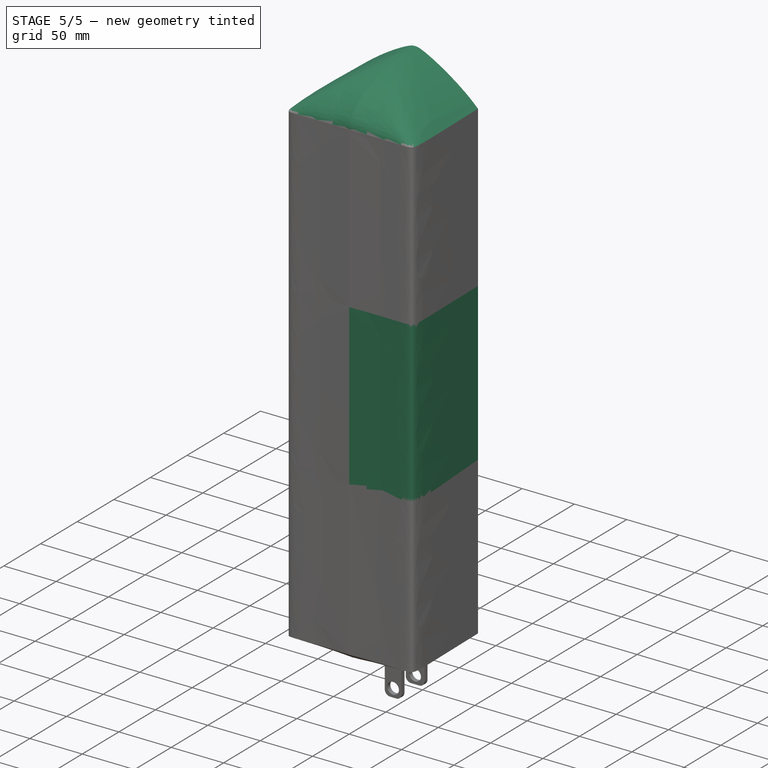
[diagram: stage 5 of 5 — iso view after this stage's code; geometry added in this stage tinted green]
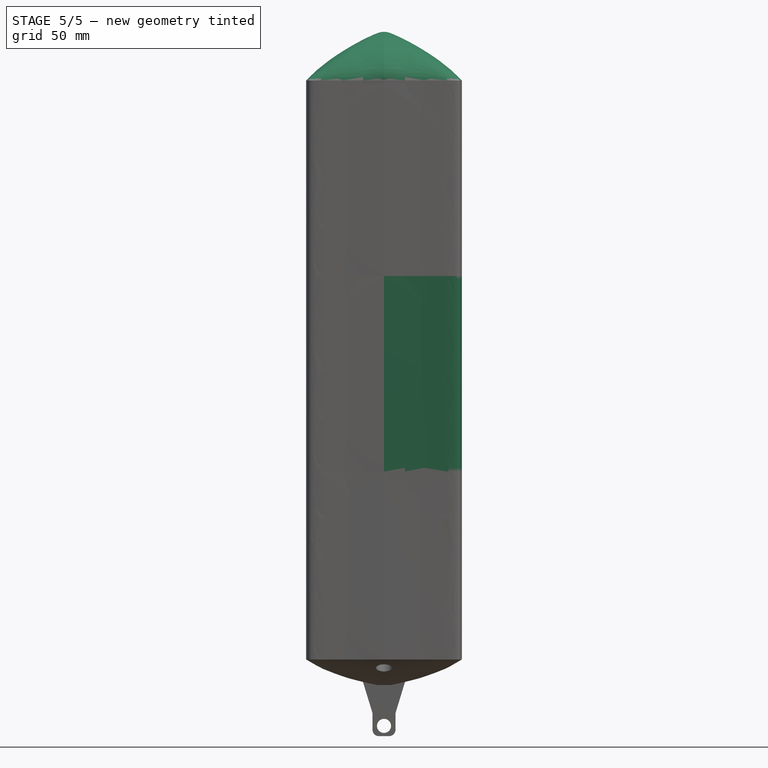
[diagram: stage 5 of 5 — front view after this stage's code; geometry added in this stage tinted green]
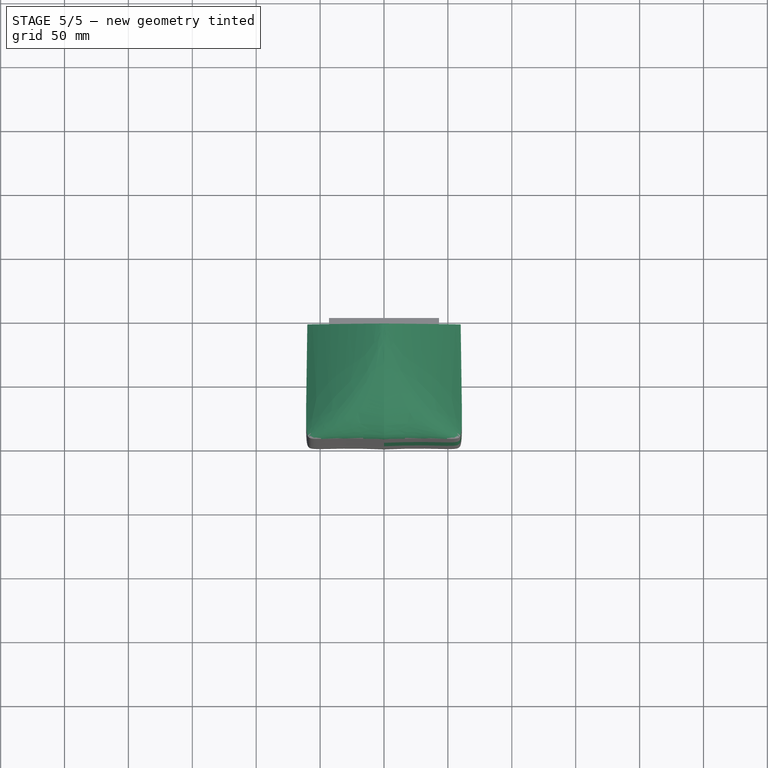
[diagram: stage 5 of 5 — top view after this stage's code; geometry added in this stage tinted green]
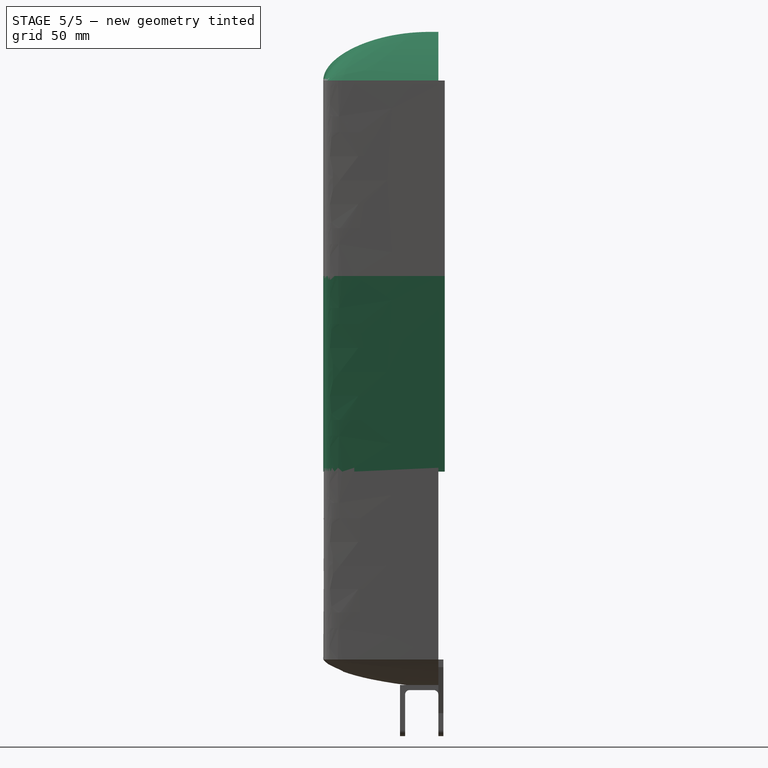
[diagram: stage 5 of 5 — right view after this stage's code; geometry added in this stage tinted green]
FEATURE [Sketcher::SketchObject] Sketch031  label="2004"
  FullyConstrained = false
  Placement = pos=(0,0,453) rot=(0,0,1;0rad)
  sketch-geometry (11):
    g0: LineSegment StartX=0 StartY=0 StartZ=0 EndX=0 EndY=90 EndZ=0
    g1: LineSegment StartX=0 StartY=90 StartZ=0 EndX=-60 EndY=90 EndZ=0
    g2-g6: Circle x5 (B-spline internal-alignment scaffolding for g7; pole/knot coordinates omitted)
    g7: BSplineCurve PolesCount=5 KnotsCount=3 Degree=3 IsPeriodic=0
    g8: GeomPoint X=-60 Y=90 Z=0
    g9: GeomPoint X=-56.8051 Y=0.710668 Z=0
    g10: GeomPoint X=0 Y=0 Z=0
  constraints (14):
    c: Coincident(g-1,g0)
    c: PointOnObject(g0,g-2)
    c: Horizontal(g1)
    c: Weight(g2) = 1
    c: Coincident(g7,g1)
    c: Equal(g2, g3-g6) x4
    c: Coincident(g7,g0)
    c: InternalAlignment(g2-g6 -> g7) x5
    c: InternalAlignment(g8,g7)
    c: InternalAlignment(g9,g7)
    c: InternalAlignment(g10,g7)
    c: DistanceY(g0,g1) = 90
    c: DistanceX(g1,g0) = 60
    c: Coincident(g1,g0)
FEATURE [Sketcher::SketchObject] Sketch032  label="21001"
  FullyConstrained = false
  Placement = pos=(0,0,470) rot=(0,0,1;0rad)
  sketch-geometry (11):
    g0: LineSegment StartX=0 StartY=10.0616 StartZ=0 EndX=0 EndY=90 EndZ=0
    g1: LineSegment StartX=0 StartY=90 StartZ=0 EndX=-39.6849 EndY=90 EndZ=0
    g2-g6: Circle x5 (B-spline internal-alignment scaffolding for g7; pole/knot coordinates omitted)
    g7: BSplineCurve PolesCount=5 KnotsCount=3 Degree=3 IsPeriodic=0
    g8: GeomPoint X=-39.6849 Y=90 Z=0
    g9: GeomPoint X=-37.9401 Y=20.5955 Z=0
    g10: GeomPoint X=0 Y=10.0616 Z=0
  constraints (13):
    c: PointOnObject(g0,g-2)
    c: Horizontal(g1)
    c: Weight(g2) = 1
    c: Coincident(g7,g1)
    c: Equal(g2, g3-g6) x4
    c: Coincident(g7,g0)
    c: InternalAlignment(g2-g6 -> g7) x5
    c: InternalAlignment(g8,g7)
    c: InternalAlignment(g9,g7)
    c: InternalAlignment(g10,g7)
    c: Coincident(g1,g0)
    c: DistanceY(g-1,g0) = 90
    c: Vertical(g0)
FEATURE [Sketcher::SketchObject] Sketch033  label="22001"
  FullyConstrained = false
  Placement = pos=(0,0,490) rot=(0,0,1;0rad)
  sketch-geometry (11):
    g0: LineSegment StartX=0 StartY=64.8718 StartZ=0 EndX=0 EndY=90 EndZ=0
    g1: LineSegment StartX=0 StartY=90 StartZ=0 EndX=-5.346 EndY=90 EndZ=0
    g2-g6: Circle x5 (B-spline internal-alignment scaffolding for g7; pole/knot coordinates omitted)
    g7: BSplineCurve PolesCount=5 KnotsCount=3 Degree=3 IsPeriodic=0
    g8: GeomPoint X=-5.346 Y=90 Z=0
    g9: GeomPoint X=-4.55494 Y=70.668 Z=0
    g10: GeomPoint X=0 Y=64.8718 Z=0
  constraints (13):
    c: PointOnObject(g0,g-2)
    c: Horizontal(g1)
    c: Weight(g2) = 1
    c: Coincident(g7,g1)
    c: Equal(g2, g3-g6) x4
    c: Coincident(g7,g0)
    c: InternalAlignment(g2-g6 -> g7) x5
    c: InternalAlignment(g8,g7)
    c: InternalAlignment(g9,g7)
    c: InternalAlignment(g10,g7)
    c: Coincident(g1,g0)
    c: DistanceY(g-1,g0) = 90
    c: Vertical(g0)
FEATURE [Sketcher::SketchObject] Sketch034  label="23001"
  FullyConstrained = false
  Placement = pos=(0,0,491) rot=(0,0,1;0rad)
  sketch-geometry (11):
    g0: LineSegment StartX=0 StartY=87.6376 StartZ=0 EndX=0 EndY=90 EndZ=0
    g1: LineSegment StartX=0 StartY=90 StartZ=0 EndX=-0.487757 EndY=90 EndZ=0
    g2-g6: Circle x5 (B-spline internal-alignment scaffolding for g7; pole/knot coordinates omitted)
    g7: BSplineCurve PolesCount=5 KnotsCount=3 Degree=3 IsPeriodic=0
    g8: GeomPoint X=-0.487757 Y=90 Z=0
    g9: GeomPoint X=-0.417042 Y=88.4782 Z=0
    g10: GeomPoint X=0 Y=87.6376 Z=0
  constraints (13):
    c: PointOnObject(g0,g-2)
    c: Horizontal(g1)
    c: Weight(g2) = 1
    c: Coincident(g7,g1)
    c: Equal(g2, g3-g6) x4
    c: Coincident(g7,g0)
    c: InternalAlignment(g2-g6 -> g7) x5
    c: InternalAlignment(g8,g7)
    c: InternalAlignment(g9,g7)
    c: InternalAlignment(g10,g7)
    c: Coincident(g1,g0)
    c: DistanceY(g-1,g0) = 90
    c: Vertical(g0)
FEATURE [PartDesign::AdditiveLoft] AdditiveLoft005
  Closed = false
  Placement = pos=(0,0,453) rot=(0,0,1;0rad)
  Profile = -> Sketch031
  Ruled = false
  Sections = -> [Sketch032,Sketch033,Sketch034]
FEATURE [PartDesign::Mirrored] Mirrored
  BaseFeature = -> AdditiveLoft005
  MirrorPlane = -> Sketch031 [V_Axis]
  Originals = -> [AdditiveLoft005]
  Placement = pos=(0,0,453) rot=(0,0,1;0rad)
FEATURE [PartDesign::Body] Body003
  Group = -> [Sketch031,Sketch032,Sketch033,Sketch034,AdditiveLoft005,Mirrored]
  Origin = -> Origin007
  Tip = -> Mirrored
FEATURE [PartDesign::Mirrored] Mirrored002
  BaseFeature = -> AdditiveLoft003
  MirrorPlane = -> Sketch025 [V_Axis]
  Originals = -> [AdditiveLoft002]
  Placement = pos=(0,0,150) rot=(0,0,1;0rad)
FEATURE [PartDesign::Mirrored] Mirrored003
  BaseFeature = -> Mirrored002
  MirrorPlane = -> Sketch027 [V_Axis]
  Originals = -> [AdditiveLoft003]
  Placement = pos=(0,0,150) rot=(0,0,1;0rad)
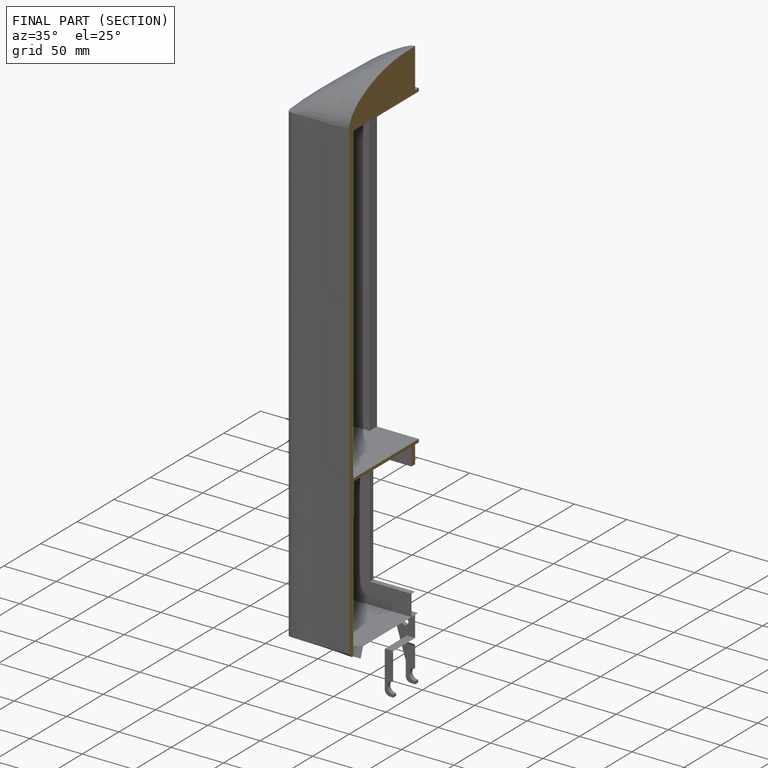
[diagram: finished part — half-section view (interior)]
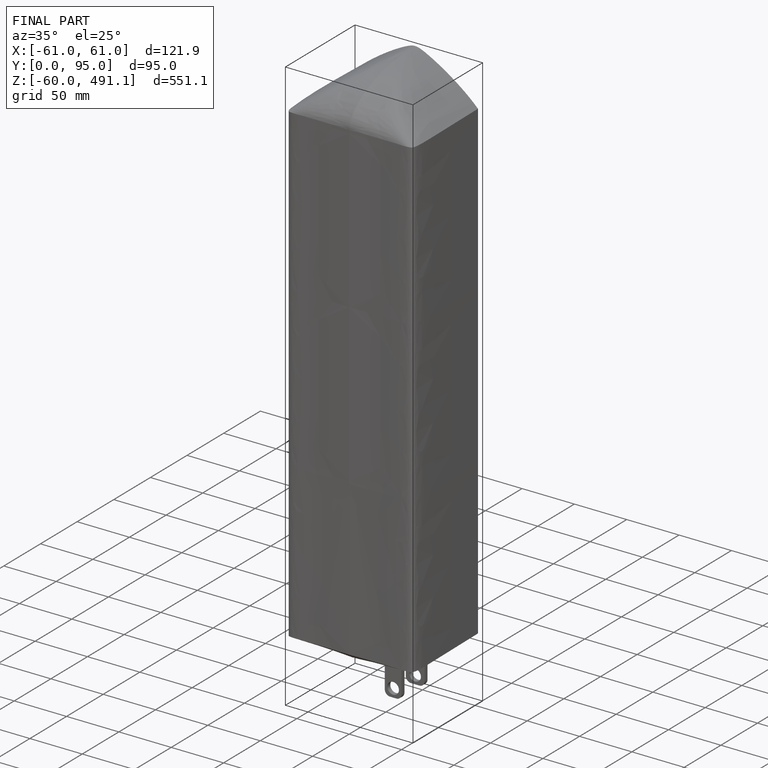
[diagram: finished part — iso view with bounding-box wireframe]
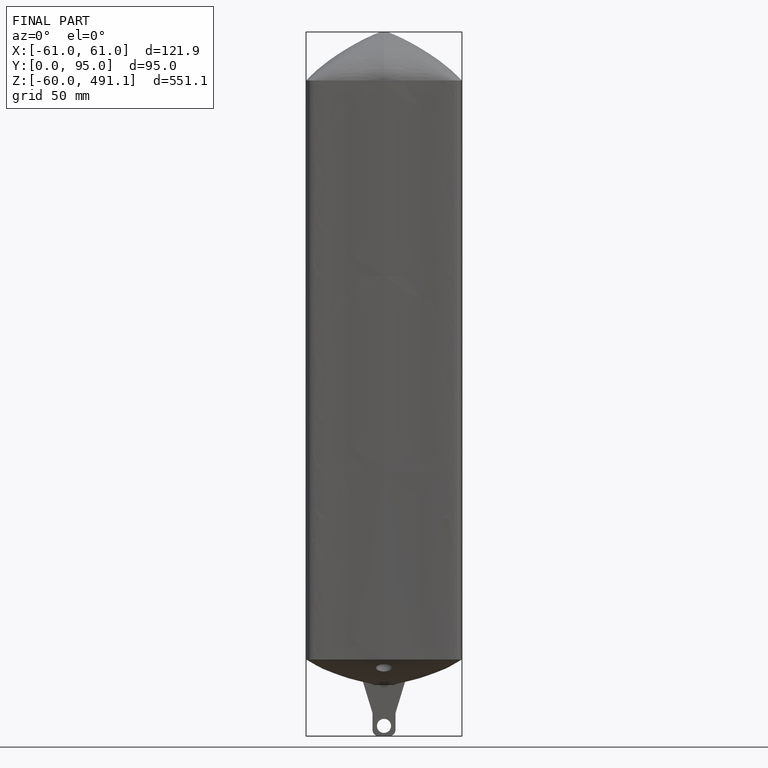
[diagram: finished part — front view with bounding-box wireframe]
